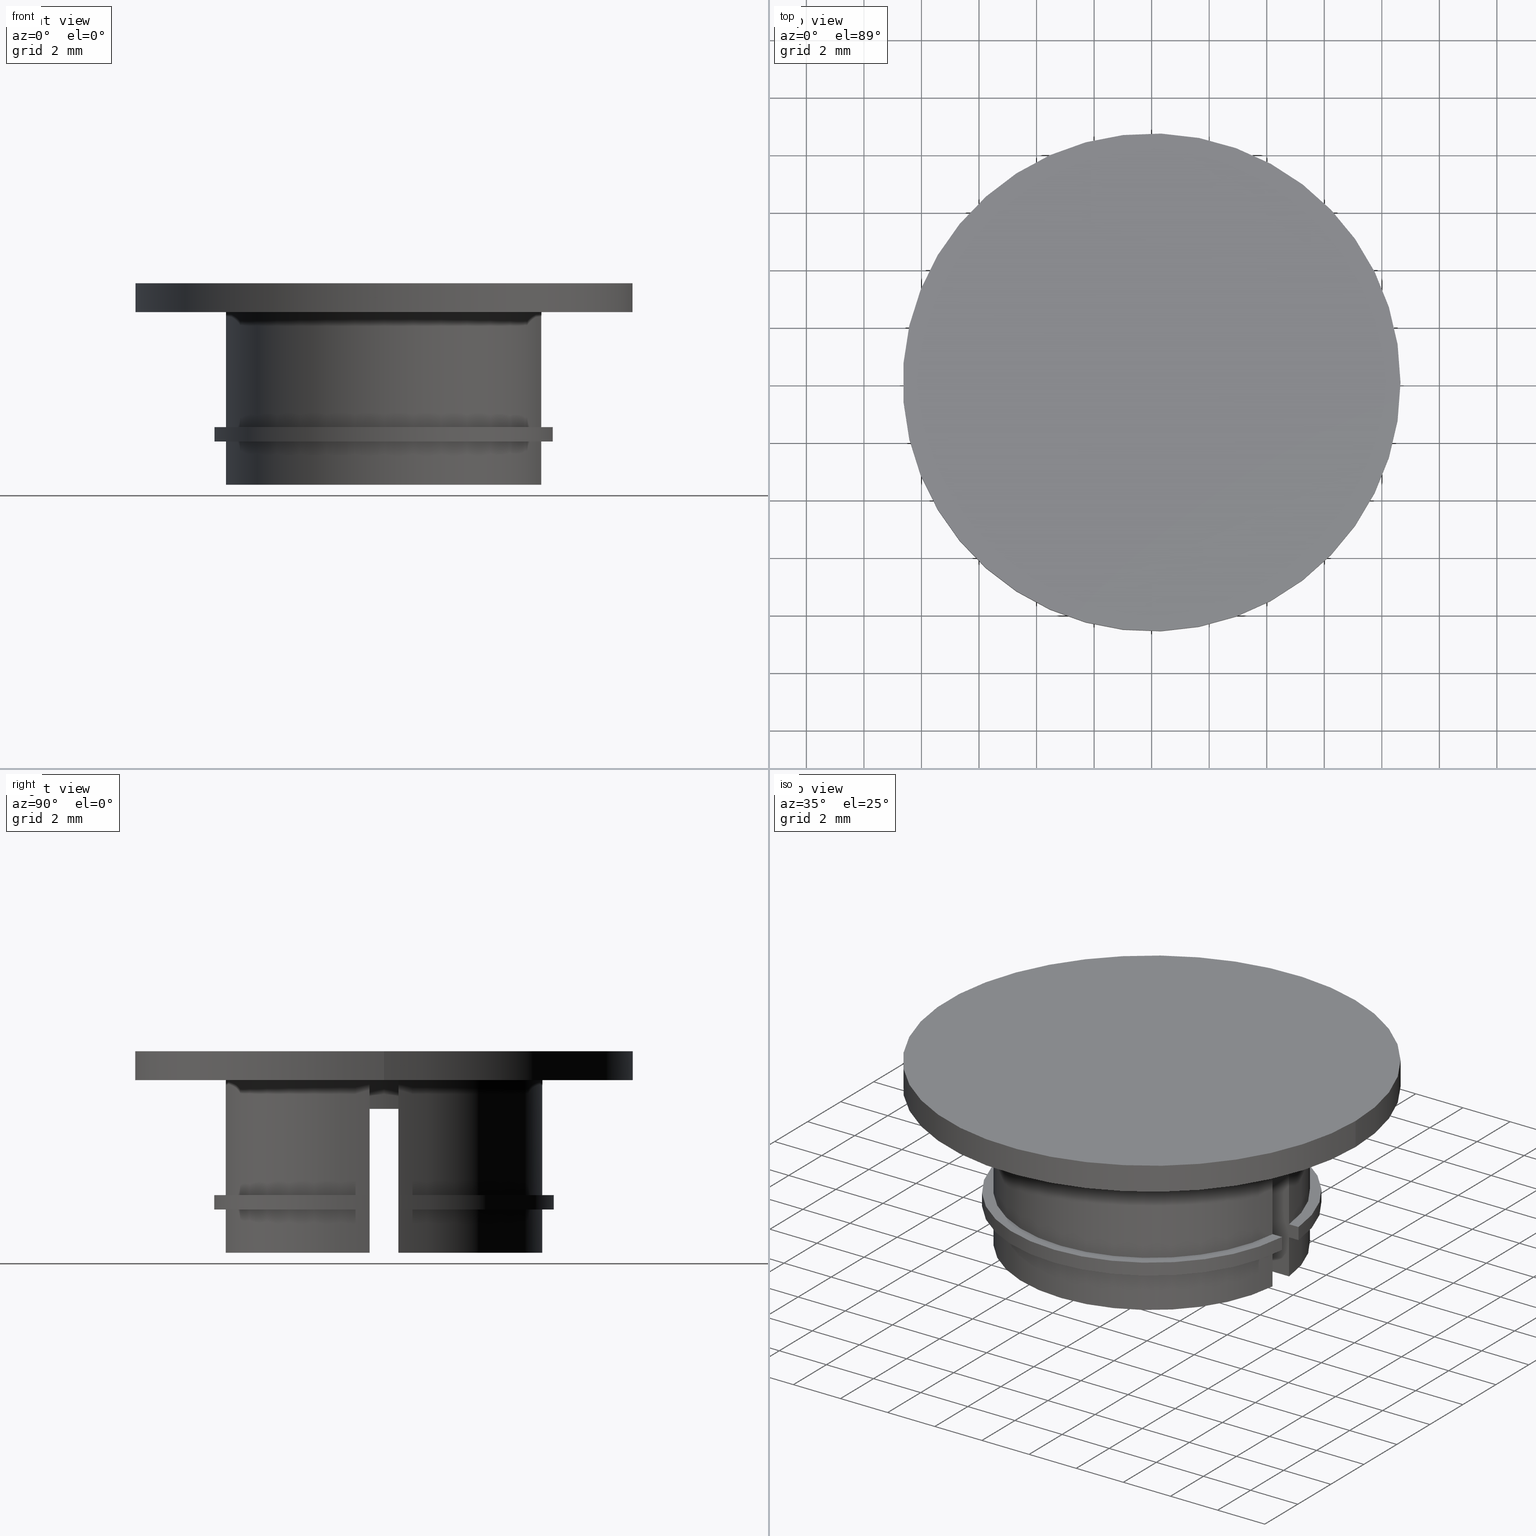
[diagram: canonical four-view strip — front | top / right | iso, engineering-drawing reading convention]
A machine part, canonical four-view strip (front | top / right | iso — engineering-drawing reading convention). The complete STEP part file that produces these views, byte-faithful:
ISO-10303-21;
HEADER;
FILE_DESCRIPTION( ( 'STEP AP203' ), '1' );
FILE_NAME( 'C:/Documents and Settings/JP/�f�X�N�g�b�v/�_�E�����[�h�pCAD�f�[�^/�A���J�[�p���l�W�L���b�v/M12/M12.step', '2022-07-28T02:36:51', ( ' ' ), ( ' ' ), 'XStep 1.0', ' ', ' ' );
FILE_SCHEMA( ( 'CONFIG_CONTROL_DESIGN' ) );
ENDSEC;
DATA;
#1 = DESIGN_CONTEXT( '', #27, 'design' );
#2 = APPLICATION_PROTOCOL_DEFINITION( 'INTERNATIONAL STANDARD', 'config_control_design', 1994, #27 );
#3 = PRODUCT_CATEGORY_RELATIONSHIP( 'NONE', 'NONE', #28, #29 );
#4 = DATE_AND_TIME( #30, #31 );
#5 = DATE_TIME_ROLE( 'creation_date' );
#6 = DATE_TIME_ROLE( 'classification_date' );
#7 = PERSON_AND_ORGANIZATION_ROLE( 'creator' );
#8 = PERSON_AND_ORGANIZATION_ROLE( 'design_supplier' );
#9 = PERSON_AND_ORGANIZATION_ROLE( 'classification_officer' );
#10 = PERSON_AND_ORGANIZATION_ROLE( 'design_owner' );
#11 = APPROVAL_PERSON_ORGANIZATION( #32, #33, #34 );
#12 = APPROVAL_DATE_TIME( #4, #33 );
#13 = CC_DESIGN_APPROVAL( #33, ( #35, #36, #37 ) );
#14 = CC_DESIGN_DATE_AND_TIME_ASSIGNMENT( #4, #5, ( #37 ) );
#15 = CC_DESIGN_DATE_AND_TIME_ASSIGNMENT( #4, #6, ( #35 ) );
#16 = CC_DESIGN_PERSON_AND_ORGANIZATION_ASSIGNMENT( #32, #10, ( #38 ) );
#17 = CC_DESIGN_PERSON_AND_ORGANIZATION_ASSIGNMENT( #32, #7, ( #37 ) );
#18 = CC_DESIGN_PERSON_AND_ORGANIZATION_ASSIGNMENT( #32, #7, ( #36 ) );
#19 = CC_DESIGN_PERSON_AND_ORGANIZATION_ASSIGNMENT( #32, #8, ( #36 ) );
#20 = CC_DESIGN_SECURITY_CLASSIFICATION( #35, ( #36 ) );
#21 = CC_DESIGN_PERSON_AND_ORGANIZATION_ASSIGNMENT( #32, #9, ( #35 ) );
#22 = SHAPE_DEFINITION_REPRESENTATION( #39, #40 );
#23 =  ( GEOMETRIC_REPRESENTATION_CONTEXT( 3 )GLOBAL_UNCERTAINTY_ASSIGNED_CONTEXT( ( #43 ) )GLOBAL_UNIT_ASSIGNED_CONTEXT( ( #45, #46, #47 ) )REPRESENTATION_CONTEXT( 'NONE', 'WORKSPACE' ) );
#27 = APPLICATION_CONTEXT( 'CONFIGURATION CONTROLLED 3D DESIGNS OF MECHANICAL PARTS AND ASSEMBLIES' );
#28 = PRODUCT_CATEGORY( 'part', 'NONE' );
#29 = PRODUCT_RELATED_PRODUCT_CATEGORY( 'detail', ' ', ( #38 ) );
#30 = CALENDAR_DATE( 2022, 28, 6 );
#31 = LOCAL_TIME( 11, 36, 51.0000000000000, #49 );
#32 = PERSON_AND_ORGANIZATION( #50, #51 );
#33 = APPROVAL( #52, 'SOLID MODEL' );
#34 = APPROVAL_ROLE( 'APPROVED' );
#35 = SECURITY_CLASSIFICATION( '', '', #53 );
#36 = PRODUCT_DEFINITION_FORMATION_WITH_SPECIFIED_SOURCE( ' ', 'NONE', #38, .NOT_KNOWN. );
#37 = PRODUCT_DEFINITION( 'NONE', 'NONE', #36, #1 );
#38 = PRODUCT( '1', '1', 'PART-1-DESC', ( #54 ) );
#39 = PRODUCT_DEFINITION_SHAPE( 'NONE', 'NONE', #37 );
#40 = ADVANCED_BREP_SHAPE_REPRESENTATION( '1', ( #55, #56 ), #23 );
#43 = UNCERTAINTY_MEASURE_WITH_UNIT( LENGTH_MEASURE( 0.00100000000000000 ), #45, '', '' );
#45 =  ( CONVERSION_BASED_UNIT( 'MILLIMETRE', #59 )LENGTH_UNIT(  )NAMED_UNIT( #62 ) );
#46 =  ( NAMED_UNIT( #64 )PLANE_ANGLE_UNIT(  )SI_UNIT( $, .RADIAN. ) );
#47 =  ( NAMED_UNIT( #64 )SOLID_ANGLE_UNIT(  )SI_UNIT( $, .STERADIAN. ) );
#49 = COORDINATED_UNIVERSAL_TIME_OFFSET( 9, 0, .AHEAD. );
#50 = PERSON( '', 'UNSPECIFIED', $, $, $, $ );
#51 = ORGANIZATION( 'UNSPECIFIED', 'UNSPECIFIED', 'UNSPECIFIED' );
#52 = APPROVAL_STATUS( 'approved' );
#53 = SECURITY_CLASSIFICATION_LEVEL( 'unclassified' );
#54 = MECHANICAL_CONTEXT( '', #27, 'mechanical' );
#55 = MANIFOLD_SOLID_BREP( '1', #70 );
#56 = AXIS2_PLACEMENT_3D( '', #71, #72, #73 );
#59 = LENGTH_MEASURE_WITH_UNIT( LENGTH_MEASURE( 1.00000000000000 ), #74 );
#62 = DIMENSIONAL_EXPONENTS( 1.00000000000000, 0.000000000000000, 0.000000000000000, 0.000000000000000, 0.000000000000000, 0.000000000000000, 0.000000000000000 );
#64 = DIMENSIONAL_EXPONENTS( 0.000000000000000, 0.000000000000000, 0.000000000000000, 0.000000000000000, 0.000000000000000, 0.000000000000000, 0.000000000000000 );
#70 = CLOSED_SHELL( '', ( #75, #76, #77, #78, #79, #80, #81, #82, #83, #84, #85, #86, #87, #88, #89, #90, #91, #92, #93, #94, #95, #96, #97, #98 ) );
#71 = CARTESIAN_POINT( '', ( 0.000000000000000, 0.000000000000000, 0.000000000000000 ) );
#72 = DIRECTION( '', ( 0.000000000000000, 0.000000000000000, 1.00000000000000 ) );
#73 = DIRECTION( '', ( 1.00000000000000, 0.000000000000000, 0.000000000000000 ) );
#74 =  ( NAMED_UNIT( #62 )LENGTH_UNIT(  )SI_UNIT( .MILLI., .METRE. ) );
#75 = ADVANCED_FACE( '', ( #100 ), #101, .F. );
#76 = ADVANCED_FACE( '', ( #102, #103 ), #104, .F. );
#77 = ADVANCED_FACE( '', ( #105 ), #106, .T. );
#78 = ADVANCED_FACE( '', ( #107 ), #108, .T. );
#79 = ADVANCED_FACE( '', ( #109 ), #110, .T. );
#80 = ADVANCED_FACE( '', ( #111 ), #112, .F. );
#81 = ADVANCED_FACE( '', ( #113 ), #114, .T. );
#82 = ADVANCED_FACE( '', ( #115 ), #116, .T. );
#83 = ADVANCED_FACE( '', ( #117 ), #118, .T. );
#84 = ADVANCED_FACE( '', ( #119, #120 ), #121, .T. );
#85 = ADVANCED_FACE( '', ( #122 ), #123, .F. );
#86 = ADVANCED_FACE( '', ( #124 ), #125, .F. );
#87 = ADVANCED_FACE( '', ( #126 ), #127, .F. );
#88 = ADVANCED_FACE( '', ( #128 ), #129, .T. );
#89 = ADVANCED_FACE( '', ( #130 ), #131, .F. );
#90 = ADVANCED_FACE( '', ( #132 ), #133, .T. );
#91 = ADVANCED_FACE( '', ( #134 ), #135, .F. );
#92 = ADVANCED_FACE( '', ( #136 ), #137, .T. );
#93 = ADVANCED_FACE( '', ( #138 ), #139, .T. );
#94 = ADVANCED_FACE( '', ( #140 ), #141, .F. );
#95 = ADVANCED_FACE( '', ( #142 ), #143, .F. );
#96 = ADVANCED_FACE( '', ( #144 ), #145, .T. );
#97 = ADVANCED_FACE( '', ( #146 ), #147, .T. );
#98 = ADVANCED_FACE( '', ( #148 ), #149, .F. );
#100 = FACE_OUTER_BOUND( '', #150, .T. );
#101 = CYLINDRICAL_SURFACE( '', #151, 4.50000000000000 );
#102 = FACE_BOUND( '', #152, .T. );
#103 = FACE_OUTER_BOUND( '', #153, .T. );
#104 = PLANE( '', #154 );
#105 = FACE_OUTER_BOUND( '', #155, .T. );
#106 = PLANE( '', #156 );
#107 = FACE_OUTER_BOUND( '', #157, .T. );
#108 = CYLINDRICAL_SURFACE( '', #158, 4.50000000000001 );
#109 = FACE_OUTER_BOUND( '', #159, .T. );
#110 = PLANE( '', #160 );
#111 = FACE_OUTER_BOUND( '', #161, .T. );
#112 = PLANE( '', #162 );
#113 = FACE_OUTER_BOUND( '', #163, .T. );
#114 = PLANE( '', #164 );
#115 = FACE_OUTER_BOUND( '', #165, .T. );
#116 = CYLINDRICAL_SURFACE( '', #166, 5.50000000000000 );
#117 = FACE_OUTER_BOUND( '', #167, .T. );
#118 = CYLINDRICAL_SURFACE( '', #168, 5.50000000000000 );
#119 = FACE_OUTER_BOUND( '', #169, .T. );
#120 = FACE_OUTER_BOUND( '', #170, .T. );
#121 = CYLINDRICAL_SURFACE( '', #171, 8.65000000000000 );
#122 = FACE_OUTER_BOUND( '', #172, .T. );
#123 = CYLINDRICAL_SURFACE( '', #173, 4.50000000000000 );
#124 = FACE_OUTER_BOUND( '', #174, .T. );
#125 = PLANE( '', #175 );
#126 = FACE_OUTER_BOUND( '', #176, .T. );
#127 = PLANE( '', #177 );
#128 = FACE_OUTER_BOUND( '', #178, .T. );
#129 = CYLINDRICAL_SURFACE( '', #179, 4.50000000000000 );
#130 = FACE_OUTER_BOUND( '', #180, .T. );
#131 = PLANE( '', #181 );
#132 = FACE_OUTER_BOUND( '', #182, .T. );
#133 = PLANE( '', #183 );
#134 = FACE_OUTER_BOUND( '', #184, .T. );
#135 = PLANE( '', #185 );
#136 = FACE_OUTER_BOUND( '', #186, .T. );
#137 = CYLINDRICAL_SURFACE( '', #187, 5.90000000000000 );
#138 = FACE_OUTER_BOUND( '', #188, .T. );
#139 = CYLINDRICAL_SURFACE( '', #189, 5.90000000000000 );
#140 = FACE_OUTER_BOUND( '', #190, .T. );
#141 = PLANE( '', #191 );
#142 = FACE_OUTER_BOUND( '', #192, .T. );
#143 = PLANE( '', #193 );
#144 = FACE_OUTER_BOUND( '', #194, .T. );
#145 = CYLINDRICAL_SURFACE( '', #195, 5.49999999999999 );
#146 = FACE_OUTER_BOUND( '', #196, .T. );
#147 = CYLINDRICAL_SURFACE( '', #197, 5.49999999999999 );
#148 = FACE_OUTER_BOUND( '', #198, .T. );
#149 = PLANE( '', #199 );
#150 = EDGE_LOOP( '', ( #200, #201, #202, #203 ) );
#151 = AXIS2_PLACEMENT_3D( '', #204, #205, #206 );
#152 = EDGE_LOOP( '', ( #207, #208, #209, #210, #211, #212, #213, #214 ) );
#153 = EDGE_LOOP( '', ( #215 ) );
#154 = AXIS2_PLACEMENT_3D( '', #216, #217, #218 );
#155 = EDGE_LOOP( '', ( #219, #220, #221, #222, #223, #224, #225, #226, #227 ) );
#156 = AXIS2_PLACEMENT_3D( '', #228, #229, #230 );
#157 = EDGE_LOOP( '', ( #231, #232, #233, #234 ) );
#158 = AXIS2_PLACEMENT_3D( '', #235, #236, #237 );
#159 = EDGE_LOOP( '', ( #238, #239, #240, #241, #242, #243, #244, #245, #246 ) );
#160 = AXIS2_PLACEMENT_3D( '', #247, #248, #249 );
#161 = EDGE_LOOP( '', ( #250, #251, #252, #253 ) );
#162 = AXIS2_PLACEMENT_3D( '', #254, #255, #256 );
#163 = EDGE_LOOP( '', ( #257, #258, #259, #260, #261, #262, #263, #264, #265 ) );
#164 = AXIS2_PLACEMENT_3D( '', #266, #267, #268 );
#165 = EDGE_LOOP( '', ( #269, #270, #271, #272 ) );
#166 = AXIS2_PLACEMENT_3D( '', #273, #274, #275 );
#167 = EDGE_LOOP( '', ( #276, #277, #278, #279 ) );
#168 = AXIS2_PLACEMENT_3D( '', #280, #281, #282 );
#169 = EDGE_LOOP( '', ( #283 ) );
#170 = EDGE_LOOP( '', ( #284 ) );
#171 = AXIS2_PLACEMENT_3D( '', #285, #286, #287 );
#172 = EDGE_LOOP( '', ( #288, #289, #290, #291 ) );
#173 = AXIS2_PLACEMENT_3D( '', #292, #293, #294 );
#174 = EDGE_LOOP( '', ( #295, #296, #297, #298 ) );
#175 = AXIS2_PLACEMENT_3D( '', #299, #300, #301 );
#176 = EDGE_LOOP( '', ( #302, #303, #304, #305 ) );
#177 = AXIS2_PLACEMENT_3D( '', #306, #307, #308 );
#178 = EDGE_LOOP( '', ( #309, #310, #311, #312 ) );
#179 = AXIS2_PLACEMENT_3D( '', #313, #314, #315 );
#180 = EDGE_LOOP( '', ( #316 ) );
#181 = AXIS2_PLACEMENT_3D( '', #317, #318, #319 );
#182 = EDGE_LOOP( '', ( #320, #321, #322, #323, #324, #325, #326, #327, #328 ) );
#183 = AXIS2_PLACEMENT_3D( '', #329, #330, #331 );
#184 = EDGE_LOOP( '', ( #332, #333, #334, #335 ) );
#185 = AXIS2_PLACEMENT_3D( '', #336, #337, #338 );
#186 = EDGE_LOOP( '', ( #339, #340, #341, #342 ) );
#187 = AXIS2_PLACEMENT_3D( '', #343, #344, #345 );
#188 = EDGE_LOOP( '', ( #346, #347, #348, #349 ) );
#189 = AXIS2_PLACEMENT_3D( '', #350, #351, #352 );
#190 = EDGE_LOOP( '', ( #353, #354, #355, #356 ) );
#191 = AXIS2_PLACEMENT_3D( '', #357, #358, #359 );
#192 = EDGE_LOOP( '', ( #360, #361, #362, #363 ) );
#193 = AXIS2_PLACEMENT_3D( '', #364, #365, #366 );
#194 = EDGE_LOOP( '', ( #367, #368, #369, #370 ) );
#195 = AXIS2_PLACEMENT_3D( '', #371, #372, #373 );
#196 = EDGE_LOOP( '', ( #374, #375, #376, #377 ) );
#197 = AXIS2_PLACEMENT_3D( '', #378, #379, #380 );
#198 = EDGE_LOOP( '', ( #381, #382, #383, #384 ) );
#199 = AXIS2_PLACEMENT_3D( '', #385, #386, #387 );
#200 = ORIENTED_EDGE( '', *, *, #388, .F. );
#201 = ORIENTED_EDGE( '', *, *, #389, .F. );
#202 = ORIENTED_EDGE( '', *, *, #390, .T. );
#203 = ORIENTED_EDGE( '', *, *, #391, .T. );
#204 = CARTESIAN_POINT( '', ( 0.000000000000000, 0.000000000000000, 6.00000000000000 ) );
#205 = DIRECTION( '', ( 6.12303176911189E-017, 0.000000000000000, -1.00000000000000 ) );
#206 = DIRECTION( '', ( 1.00000000000000, 0.000000000000000, 6.12303176911189E-017 ) );
#207 = ORIENTED_EDGE( '', *, *, #392, .T. );
#208 = ORIENTED_EDGE( '', *, *, #393, .T. );
#209 = ORIENTED_EDGE( '', *, *, #394, .T. );
#210 = ORIENTED_EDGE( '', *, *, #395, .T. );
#211 = ORIENTED_EDGE( '', *, *, #396, .T. );
#212 = ORIENTED_EDGE( '', *, *, #397, .T. );
#213 = ORIENTED_EDGE( '', *, *, #398, .T. );
#214 = ORIENTED_EDGE( '', *, *, #399, .T. );
#215 = ORIENTED_EDGE( '', *, *, #400, .F. );
#216 = CARTESIAN_POINT( '', ( -7.96632521552264E-032, 5.49999999999999, 6.00000000000000 ) );
#217 = DIRECTION( '', ( -6.12303176911189E-017, 0.000000000000000, 1.00000000000000 ) );
#218 = DIRECTION( '', ( 1.00000000000000, 0.000000000000000, 6.12303176911189E-017 ) );
#219 = ORIENTED_EDGE( '', *, *, #401, .T. );
#220 = ORIENTED_EDGE( '', *, *, #388, .T. );
#221 = ORIENTED_EDGE( '', *, *, #402, .T. );
#222 = ORIENTED_EDGE( '', *, *, #393, .F. );
#223 = ORIENTED_EDGE( '', *, *, #403, .T. );
#224 = ORIENTED_EDGE( '', *, *, #404, .T. );
#225 = ORIENTED_EDGE( '', *, *, #405, .F. );
#226 = ORIENTED_EDGE( '', *, *, #406, .T. );
#227 = ORIENTED_EDGE( '', *, *, #407, .T. );
#228 = CARTESIAN_POINT( '', ( -5.87877538267963, 0.500000000000002, -6.00000000017099 ) );
#229 = DIRECTION( '', ( 1.83253142170860E-016, -1.00000000000000, 1.12206481130175E-032 ) );
#230 = DIRECTION( '', ( -1.00000000000000, -1.83253142170860E-016, -6.12303176911189E-017 ) );
#231 = ORIENTED_EDGE( '', *, *, #408, .T. );
#232 = ORIENTED_EDGE( '', *, *, #409, .T. );
#233 = ORIENTED_EDGE( '', *, *, #394, .F. );
#234 = ORIENTED_EDGE( '', *, *, #402, .F. );
#235 = CARTESIAN_POINT( '', ( 7.34763812303896E-016, 0.000000000000000, -6.00000000017099 ) );
#236 = DIRECTION( '', ( 6.12303176911189E-017, 0.000000000000000, -1.00000000000000 ) );
#237 = DIRECTION( '', ( 1.83253142170860E-016, -1.00000000000000, 1.12206481130175E-032 ) );
#238 = ORIENTED_EDGE( '', *, *, #410, .T. );
#239 = ORIENTED_EDGE( '', *, *, #411, .T. );
#240 = ORIENTED_EDGE( '', *, *, #412, .T. );
#241 = ORIENTED_EDGE( '', *, *, #397, .F. );
#242 = ORIENTED_EDGE( '', *, *, #413, .T. );
#243 = ORIENTED_EDGE( '', *, *, #414, .T. );
#244 = ORIENTED_EDGE( '', *, *, #415, .F. );
#245 = ORIENTED_EDGE( '', *, *, #416, .T. );
#246 = ORIENTED_EDGE( '', *, *, #417, .T. );
#247 = CARTESIAN_POINT( '', ( 5.87877538267963, -0.499999999999996, -6.00000000017099 ) );
#248 = DIRECTION( '', ( -1.83253142170860E-016, 1.00000000000000, -1.12206481130175E-032 ) );
#249 = DIRECTION( '', ( 1.00000000000000, 1.83253142170860E-016, 6.12303176911189E-017 ) );
#250 = ORIENTED_EDGE( '', *, *, #418, .F. );
#251 = ORIENTED_EDGE( '', *, *, #419, .T. );
#252 = ORIENTED_EDGE( '', *, *, #414, .F. );
#253 = ORIENTED_EDGE( '', *, *, #420, .F. );
#254 = CARTESIAN_POINT( '', ( 2.44921270764476E-016, 5.90000000000000, 1.99999999999999 ) );
#255 = DIRECTION( '', ( 6.12303176911189E-017, 0.000000000000000, -1.00000000000000 ) );
#256 = DIRECTION( '', ( -1.00000000000000, 0.000000000000000, -6.12303176911189E-017 ) );
#257 = ORIENTED_EDGE( '', *, *, #421, .T. );
#258 = ORIENTED_EDGE( '', *, *, #422, .T. );
#259 = ORIENTED_EDGE( '', *, *, #423, .T. );
#260 = ORIENTED_EDGE( '', *, *, #424, .T. );
#261 = ORIENTED_EDGE( '', *, *, #418, .T. );
#262 = ORIENTED_EDGE( '', *, *, #425, .T. );
#263 = ORIENTED_EDGE( '', *, *, #395, .F. );
#264 = ORIENTED_EDGE( '', *, *, #409, .F. );
#265 = ORIENTED_EDGE( '', *, *, #426, .F. );
#266 = CARTESIAN_POINT( '', ( -4.47213595499959, -0.499999999999998, -6.00000000017099 ) );
#267 = DIRECTION( '', ( -1.83253142170860E-016, 1.00000000000000, -1.12206481130175E-032 ) );
#268 = DIRECTION( '', ( 1.00000000000000, 1.83253142170860E-016, 6.12303176911189E-017 ) );
#269 = ORIENTED_EDGE( '', *, *, #425, .F. );
#270 = ORIENTED_EDGE( '', *, *, #420, .T. );
#271 = ORIENTED_EDGE( '', *, *, #413, .F. );
#272 = ORIENTED_EDGE( '', *, *, #396, .F. );
#273 = CARTESIAN_POINT( '', ( 0.000000000000000, 0.000000000000000, 6.00000000000000 ) );
#274 = DIRECTION( '', ( 6.12303176911189E-017, 0.000000000000000, -1.00000000000000 ) );
#275 = DIRECTION( '', ( 1.00000000000000, 0.000000000000000, 6.12303176911189E-017 ) );
#276 = ORIENTED_EDGE( '', *, *, #403, .F. );
#277 = ORIENTED_EDGE( '', *, *, #392, .F. );
#278 = ORIENTED_EDGE( '', *, *, #427, .F. );
#279 = ORIENTED_EDGE( '', *, *, #428, .T. );
#280 = CARTESIAN_POINT( '', ( 0.000000000000000, 0.000000000000000, 6.00000000000000 ) );
#281 = DIRECTION( '', ( 6.12303176911189E-017, 0.000000000000000, -1.00000000000000 ) );
#282 = DIRECTION( '', ( 1.00000000000000, 0.000000000000000, 6.12303176911189E-017 ) );
#283 = ORIENTED_EDGE( '', *, *, #429, .F. );
#284 = ORIENTED_EDGE( '', *, *, #400, .T. );
#285 = CARTESIAN_POINT( '', ( 0.000000000000000, 0.000000000000000, 6.00000000000000 ) );
#286 = DIRECTION( '', ( 6.12303176911189E-017, 0.000000000000000, -1.00000000000000 ) );
#287 = DIRECTION( '', ( 1.00000000000000, 0.000000000000000, 6.12303176911189E-017 ) );
#288 = ORIENTED_EDGE( '', *, *, #426, .T. );
#289 = ORIENTED_EDGE( '', *, *, #430, .T. );
#290 = ORIENTED_EDGE( '', *, *, #411, .F. );
#291 = ORIENTED_EDGE( '', *, *, #431, .F. );
#292 = CARTESIAN_POINT( '', ( 0.000000000000000, 0.000000000000000, 6.00000000000000 ) );
#293 = DIRECTION( '', ( 6.12303176911189E-017, 0.000000000000000, -1.00000000000000 ) );
#294 = DIRECTION( '', ( 1.00000000000000, 0.000000000000000, 6.12303176911189E-017 ) );
#295 = ORIENTED_EDGE( '', *, *, #401, .F. );
#296 = ORIENTED_EDGE( '', *, *, #432, .F. );
#297 = ORIENTED_EDGE( '', *, *, #433, .F. );
#298 = ORIENTED_EDGE( '', *, *, #389, .T. );
#299 = CARTESIAN_POINT( '', ( 3.67381906146713E-016, 4.50000000000000, 1.73472347597681E-015 ) );
#300 = DIRECTION( '', ( -6.12303176911189E-017, 0.000000000000000, 1.00000000000000 ) );
#301 = DIRECTION( '', ( 1.00000000000000, 0.000000000000000, 6.12303176911189E-017 ) );
#302 = ORIENTED_EDGE( '', *, *, #391, .F. );
#303 = ORIENTED_EDGE( '', *, *, #434, .F. );
#304 = ORIENTED_EDGE( '', *, *, #430, .F. );
#305 = ORIENTED_EDGE( '', *, *, #408, .F. );
#306 = CARTESIAN_POINT( '', ( 6.12303176911184E-017, 0.000000000000000, 5.00000000000001 ) );
#307 = DIRECTION( '', ( -6.12303176911189E-017, 0.000000000000000, 1.00000000000000 ) );
#308 = DIRECTION( '', ( 1.00000000000000, 0.000000000000000, 6.12303176911189E-017 ) );
#309 = ORIENTED_EDGE( '', *, *, #434, .T. );
#310 = ORIENTED_EDGE( '', *, *, #435, .T. );
#311 = ORIENTED_EDGE( '', *, *, #398, .F. );
#312 = ORIENTED_EDGE( '', *, *, #412, .F. );
#313 = CARTESIAN_POINT( '', ( 7.34763812303896E-016, 0.000000000000000, -6.00000000017099 ) );
#314 = DIRECTION( '', ( 6.12303176911189E-017, 0.000000000000000, -1.00000000000000 ) );
#315 = DIRECTION( '', ( 1.83253142170860E-016, -1.00000000000000, 1.12206481130175E-032 ) );
#316 = ORIENTED_EDGE( '', *, *, #429, .T. );
#317 = CARTESIAN_POINT( '', ( -6.12303176911189E-017, 8.65000000000002, 7.00000000000000 ) );
#318 = DIRECTION( '', ( 6.12303176911189E-017, 0.000000000000000, -1.00000000000000 ) );
#319 = DIRECTION( '', ( -1.00000000000000, 0.000000000000000, -6.12303176911189E-017 ) );
#320 = ORIENTED_EDGE( '', *, *, #433, .T. );
#321 = ORIENTED_EDGE( '', *, *, #436, .T. );
#322 = ORIENTED_EDGE( '', *, *, #437, .T. );
#323 = ORIENTED_EDGE( '', *, *, #438, .T. );
#324 = ORIENTED_EDGE( '', *, *, #439, .T. );
#325 = ORIENTED_EDGE( '', *, *, #427, .T. );
#326 = ORIENTED_EDGE( '', *, *, #399, .F. );
#327 = ORIENTED_EDGE( '', *, *, #435, .F. );
#328 = ORIENTED_EDGE( '', *, *, #390, .F. );
#329 = CARTESIAN_POINT( '', ( 4.47213595499958, 0.500000000000004, -6.00000000017099 ) );
#330 = DIRECTION( '', ( 1.83253142170860E-016, -1.00000000000000, 1.12206481130175E-032 ) );
#331 = DIRECTION( '', ( -1.00000000000000, -1.83253142170860E-016, -6.12303176911189E-017 ) );
#332 = ORIENTED_EDGE( '', *, *, #404, .F. );
#333 = ORIENTED_EDGE( '', *, *, #428, .F. );
#334 = ORIENTED_EDGE( '', *, *, #439, .F. );
#335 = ORIENTED_EDGE( '', *, *, #440, .T. );
#336 = CARTESIAN_POINT( '', ( 2.44921270764476E-016, 5.90000000000000, 1.99999999999999 ) );
#337 = DIRECTION( '', ( 6.12303176911189E-017, 0.000000000000000, -1.00000000000000 ) );
#338 = DIRECTION( '', ( -1.00000000000000, 0.000000000000000, -6.12303176911189E-017 ) );
#339 = ORIENTED_EDGE( '', *, *, #424, .F. );
#340 = ORIENTED_EDGE( '', *, *, #441, .T. );
#341 = ORIENTED_EDGE( '', *, *, #415, .T. );
#342 = ORIENTED_EDGE( '', *, *, #419, .F. );
#343 = CARTESIAN_POINT( '', ( 0.000000000000000, 0.000000000000000, 6.00000000000000 ) );
#344 = DIRECTION( '', ( 6.12303176911189E-017, 0.000000000000000, -1.00000000000000 ) );
#345 = DIRECTION( '', ( 1.00000000000000, 0.000000000000000, 6.12303176911189E-017 ) );
#346 = ORIENTED_EDGE( '', *, *, #405, .T. );
#347 = ORIENTED_EDGE( '', *, *, #440, .F. );
#348 = ORIENTED_EDGE( '', *, *, #438, .F. );
#349 = ORIENTED_EDGE( '', *, *, #442, .T. );
#350 = CARTESIAN_POINT( '', ( 0.000000000000000, 0.000000000000000, 6.00000000000000 ) );
#351 = DIRECTION( '', ( 6.12303176911189E-017, 0.000000000000000, -1.00000000000000 ) );
#352 = DIRECTION( '', ( 1.00000000000000, 0.000000000000000, 6.12303176911189E-017 ) );
#353 = ORIENTED_EDGE( '', *, *, #423, .F. );
#354 = ORIENTED_EDGE( '', *, *, #443, .T. );
#355 = ORIENTED_EDGE( '', *, *, #416, .F. );
#356 = ORIENTED_EDGE( '', *, *, #441, .F. );
#357 = CARTESIAN_POINT( '', ( 2.75536429610035E-016, 5.49999999999999, 1.50000000000000 ) );
#358 = DIRECTION( '', ( -6.12303176911189E-017, 0.000000000000000, 1.00000000000000 ) );
#359 = DIRECTION( '', ( 1.00000000000000, 0.000000000000000, 6.12303176911189E-017 ) );
#360 = ORIENTED_EDGE( '', *, *, #406, .F. );
#361 = ORIENTED_EDGE( '', *, *, #442, .F. );
#362 = ORIENTED_EDGE( '', *, *, #437, .F. );
#363 = ORIENTED_EDGE( '', *, *, #444, .T. );
#364 = CARTESIAN_POINT( '', ( 2.75536429610035E-016, 5.49999999999999, 1.50000000000000 ) );
#365 = DIRECTION( '', ( -6.12303176911189E-017, 0.000000000000000, 1.00000000000000 ) );
#366 = DIRECTION( '', ( 1.00000000000000, 0.000000000000000, 6.12303176911189E-017 ) );
#367 = ORIENTED_EDGE( '', *, *, #422, .F. );
#368 = ORIENTED_EDGE( '', *, *, #445, .T. );
#369 = ORIENTED_EDGE( '', *, *, #417, .F. );
#370 = ORIENTED_EDGE( '', *, *, #443, .F. );
#371 = CARTESIAN_POINT( '', ( 0.000000000000000, 0.000000000000000, 6.00000000000000 ) );
#372 = DIRECTION( '', ( 6.12303176911189E-017, 0.000000000000000, -1.00000000000000 ) );
#373 = DIRECTION( '', ( 1.00000000000000, 0.000000000000000, 6.12303176911189E-017 ) );
#374 = ORIENTED_EDGE( '', *, *, #407, .F. );
#375 = ORIENTED_EDGE( '', *, *, #444, .F. );
#376 = ORIENTED_EDGE( '', *, *, #436, .F. );
#377 = ORIENTED_EDGE( '', *, *, #432, .T. );
#378 = CARTESIAN_POINT( '', ( 0.000000000000000, 0.000000000000000, 6.00000000000000 ) );
#379 = DIRECTION( '', ( 6.12303176911189E-017, 0.000000000000000, -1.00000000000000 ) );
#380 = DIRECTION( '', ( 1.00000000000000, 0.000000000000000, 6.12303176911189E-017 ) );
#381 = ORIENTED_EDGE( '', *, *, #421, .F. );
#382 = ORIENTED_EDGE( '', *, *, #431, .T. );
#383 = ORIENTED_EDGE( '', *, *, #410, .F. );
#384 = ORIENTED_EDGE( '', *, *, #445, .F. );
#385 = CARTESIAN_POINT( '', ( 3.67381906146713E-016, 4.50000000000000, 1.73472347597681E-015 ) );
#386 = DIRECTION( '', ( -6.12303176911189E-017, 0.000000000000000, 1.00000000000000 ) );
#387 = DIRECTION( '', ( 1.00000000000000, 0.000000000000000, 6.12303176911189E-017 ) );
#388 = EDGE_CURVE( '', #446, #447, #448, .T. );
#389 = EDGE_CURVE( '', #449, #446, #450, .T. );
#390 = EDGE_CURVE( '', #449, #451, #452, .T. );
#391 = EDGE_CURVE( '', #451, #447, #453, .T. );
#392 = EDGE_CURVE( '', #454, #455, #456, .T. );
#393 = EDGE_CURVE( '', #455, #457, #458, .T. );
#394 = EDGE_CURVE( '', #457, #459, #460, .T. );
#395 = EDGE_CURVE( '', #459, #461, #462, .T. );
#396 = EDGE_CURVE( '', #461, #463, #464, .T. );
#397 = EDGE_CURVE( '', #463, #465, #466, .T. );
#398 = EDGE_CURVE( '', #465, #467, #468, .T. );
#399 = EDGE_CURVE( '', #467, #454, #469, .T. );
#400 = EDGE_CURVE( '', #470, #470, #471, .T. );
#401 = EDGE_CURVE( '', #472, #446, #473, .T. );
#402 = EDGE_CURVE( '', #447, #457, #474, .T. );
#403 = EDGE_CURVE( '', #455, #475, #476, .F. );
#404 = EDGE_CURVE( '', #475, #477, #478, .T. );
#405 = EDGE_CURVE( '', #479, #477, #480, .T. );
#406 = EDGE_CURVE( '', #479, #481, #482, .T. );
#407 = EDGE_CURVE( '', #481, #472, #483, .F. );
#408 = EDGE_CURVE( '', #447, #484, #485, .T. );
#409 = EDGE_CURVE( '', #484, #459, #486, .T. );
#410 = EDGE_CURVE( '', #487, #488, #489, .T. );
#411 = EDGE_CURVE( '', #488, #490, #491, .T. );
#412 = EDGE_CURVE( '', #490, #465, #492, .T. );
#413 = EDGE_CURVE( '', #463, #493, #494, .F. );
#414 = EDGE_CURVE( '', #493, #495, #496, .T. );
#415 = EDGE_CURVE( '', #497, #495, #498, .T. );
#416 = EDGE_CURVE( '', #497, #499, #500, .T. );
#417 = EDGE_CURVE( '', #499, #487, #501, .F. );
#418 = EDGE_CURVE( '', #502, #503, #504, .T. );
#419 = EDGE_CURVE( '', #502, #495, #505, .T. );
#420 = EDGE_CURVE( '', #503, #493, #506, .T. );
#421 = EDGE_CURVE( '', #507, #508, #509, .T. );
#422 = EDGE_CURVE( '', #508, #510, #511, .T. );
#423 = EDGE_CURVE( '', #510, #512, #513, .T. );
#424 = EDGE_CURVE( '', #512, #502, #514, .T. );
#425 = EDGE_CURVE( '', #503, #461, #515, .T. );
#426 = EDGE_CURVE( '', #507, #484, #516, .T. );
#427 = EDGE_CURVE( '', #517, #454, #518, .T. );
#428 = EDGE_CURVE( '', #517, #475, #519, .T. );
#429 = EDGE_CURVE( '', #520, #520, #521, .T. );
#430 = EDGE_CURVE( '', #484, #490, #522, .T. );
#431 = EDGE_CURVE( '', #507, #488, #523, .T. );
#432 = EDGE_CURVE( '', #524, #472, #525, .T. );
#433 = EDGE_CURVE( '', #449, #524, #526, .T. );
#434 = EDGE_CURVE( '', #490, #451, #527, .T. );
#435 = EDGE_CURVE( '', #451, #467, #528, .T. );
#436 = EDGE_CURVE( '', #524, #529, #530, .T. );
#437 = EDGE_CURVE( '', #529, #531, #532, .T. );
#438 = EDGE_CURVE( '', #531, #533, #534, .T. );
#439 = EDGE_CURVE( '', #533, #517, #535, .T. );
#440 = EDGE_CURVE( '', #533, #477, #536, .T. );
#441 = EDGE_CURVE( '', #512, #497, #537, .T. );
#442 = EDGE_CURVE( '', #531, #479, #538, .T. );
#443 = EDGE_CURVE( '', #510, #499, #539, .T. );
#444 = EDGE_CURVE( '', #529, #481, #540, .T. );
#445 = EDGE_CURVE( '', #508, #487, #541, .T. );
#446 = VERTEX_POINT( '', #542 );
#447 = VERTEX_POINT( '', #543 );
#448 = LINE( '', #544, #545 );
#449 = VERTEX_POINT( '', #546 );
#450 = CIRCLE( '', #547, 4.50000000000000 );
#451 = VERTEX_POINT( '', #548 );
#452 = LINE( '', #549, #550 );
#453 = CIRCLE( '', #551, 4.50000000000001 );
#454 = VERTEX_POINT( '', #552 );
#455 = VERTEX_POINT( '', #553 );
#456 = CIRCLE( '', #554, 5.50000000000000 );
#457 = VERTEX_POINT( '', #555 );
#458 = LINE( '', #556, #557 );
#459 = VERTEX_POINT( '', #558 );
#460 = CIRCLE( '', #559, 4.50000000000001 );
#461 = VERTEX_POINT( '', #560 );
#462 = LINE( '', #561, #562 );
#463 = VERTEX_POINT( '', #563 );
#464 = CIRCLE( '', #564, 5.50000000000000 );
#465 = VERTEX_POINT( '', #565 );
#466 = LINE( '', #566, #567 );
#467 = VERTEX_POINT( '', #568 );
#468 = CIRCLE( '', #569, 4.50000000000000 );
#469 = LINE( '', #570, #571 );
#470 = VERTEX_POINT( '', #572 );
#471 = CIRCLE( '', #573, 8.65000000000000 );
#472 = VERTEX_POINT( '', #574 );
#473 = LINE( '', #575, #576 );
#474 = LINE( '', #577, #578 );
#475 = VERTEX_POINT( '', #579 );
#476 = LINE( '', #580, #581 );
#477 = VERTEX_POINT( '', #582 );
#478 = LINE( '', #583, #584 );
#479 = VERTEX_POINT( '', #585 );
#480 = LINE( '', #586, #587 );
#481 = VERTEX_POINT( '', #588 );
#482 = LINE( '', #589, #590 );
#483 = LINE( '', #591, #592 );
#484 = VERTEX_POINT( '', #593 );
#485 = CIRCLE( '', #594, 4.50000000000001 );
#486 = LINE( '', #595, #596 );
#487 = VERTEX_POINT( '', #597 );
#488 = VERTEX_POINT( '', #598 );
#489 = LINE( '', #599, #600 );
#490 = VERTEX_POINT( '', #601 );
#491 = LINE( '', #602, #603 );
#492 = LINE( '', #604, #605 );
#493 = VERTEX_POINT( '', #606 );
#494 = LINE( '', #607, #608 );
#495 = VERTEX_POINT( '', #609 );
#496 = LINE( '', #610, #611 );
#497 = VERTEX_POINT( '', #612 );
#498 = LINE( '', #613, #614 );
#499 = VERTEX_POINT( '', #615 );
#500 = LINE( '', #616, #617 );
#501 = LINE( '', #618, #619 );
#502 = VERTEX_POINT( '', #620 );
#503 = VERTEX_POINT( '', #621 );
#504 = LINE( '', #622, #623 );
#505 = CIRCLE( '', #624, 5.90000000000000 );
#506 = CIRCLE( '', #625, 5.49999999999999 );
#507 = VERTEX_POINT( '', #626 );
#508 = VERTEX_POINT( '', #627 );
#509 = LINE( '', #628, #629 );
#510 = VERTEX_POINT( '', #630 );
#511 = LINE( '', #631, #632 );
#512 = VERTEX_POINT( '', #633 );
#513 = LINE( '', #634, #635 );
#514 = LINE( '', #636, #637 );
#515 = LINE( '', #638, #639 );
#516 = LINE( '', #640, #641 );
#517 = VERTEX_POINT( '', #642 );
#518 = LINE( '', #643, #644 );
#519 = CIRCLE( '', #645, 5.49999999999999 );
#520 = VERTEX_POINT( '', #646 );
#521 = CIRCLE( '', #647, 8.65000000000000 );
#522 = CIRCLE( '', #648, 4.50000000000001 );
#523 = CIRCLE( '', #649, 4.50000000000000 );
#524 = VERTEX_POINT( '', #650 );
#525 = CIRCLE( '', #651, 5.49999999999999 );
#526 = LINE( '', #652, #653 );
#527 = CIRCLE( '', #654, 4.50000000000001 );
#528 = LINE( '', #655, #656 );
#529 = VERTEX_POINT( '', #657 );
#530 = LINE( '', #658, #659 );
#531 = VERTEX_POINT( '', #660 );
#532 = LINE( '', #661, #662 );
#533 = VERTEX_POINT( '', #663 );
#534 = LINE( '', #664, #665 );
#535 = LINE( '', #666, #667 );
#536 = CIRCLE( '', #668, 5.90000000000000 );
#537 = CIRCLE( '', #669, 5.90000000000000 );
#538 = CIRCLE( '', #670, 5.90000000000000 );
#539 = CIRCLE( '', #671, 5.50000000000000 );
#540 = CIRCLE( '', #672, 5.50000000000000 );
#541 = CIRCLE( '', #673, 5.49999999999999 );
#542 = CARTESIAN_POINT( '', ( -4.47213595499959, 0.500000000000002, 1.73472347597681E-015 ) );
#543 = CARTESIAN_POINT( '', ( -4.47213595499959, 0.500000000000002, 5.00000000000000 ) );
#544 = CARTESIAN_POINT( '', ( -4.47213595499959, 0.500000000000002, -6.00000000017099 ) );
#545 = VECTOR( '', #674, 1000.00000000000 );
#546 = CARTESIAN_POINT( '', ( 4.47213595499958, 0.500000000000004, 1.73472347597681E-015 ) );
#547 = AXIS2_PLACEMENT_3D( '', #675, #676, #677 );
#548 = CARTESIAN_POINT( '', ( 4.47213595499958, 0.500000000000004, 5.00000000000000 ) );
#549 = CARTESIAN_POINT( '', ( 4.47213595499958, 0.500000000000004, -6.00000000017099 ) );
#550 = VECTOR( '', #678, 1000.00000000000 );
#551 = AXIS2_PLACEMENT_3D( '', #679, #680, #681 );
#552 = CARTESIAN_POINT( '', ( 5.47722557505166, 0.500000000000004, 6.00000000000000 ) );
#553 = CARTESIAN_POINT( '', ( -5.47722557505166, 0.500000000000002, 6.00000000000000 ) );
#554 = AXIS2_PLACEMENT_3D( '', #682, #683, #684 );
#555 = CARTESIAN_POINT( '', ( -4.47213595499959, 0.500000000000002, 6.00000000000000 ) );
#556 = CARTESIAN_POINT( '', ( -5.87877538267963, 0.500000000000002, 6.00000000000000 ) );
#557 = VECTOR( '', #685, 1000.00000000000 );
#558 = CARTESIAN_POINT( '', ( -4.47213595499959, -0.499999999999996, 6.00000000000000 ) );
#559 = AXIS2_PLACEMENT_3D( '', #686, #687, #688 );
#560 = CARTESIAN_POINT( '', ( -5.47722557505166, -0.499999999999998, 6.00000000000000 ) );
#561 = CARTESIAN_POINT( '', ( -4.47213595499959, -0.499999999999998, 6.00000000000000 ) );
#562 = VECTOR( '', #689, 1000.00000000000 );
#563 = CARTESIAN_POINT( '', ( 5.47722557505166, -0.499999999999996, 6.00000000000000 ) );
#564 = AXIS2_PLACEMENT_3D( '', #690, #691, #692 );
#565 = CARTESIAN_POINT( '', ( 4.47213595499958, -0.499999999999996, 6.00000000000000 ) );
#566 = CARTESIAN_POINT( '', ( 5.87877538267963, -0.499999999999996, 6.00000000000000 ) );
#567 = VECTOR( '', #693, 1000.00000000000 );
#568 = CARTESIAN_POINT( '', ( 4.47213595499958, 0.500000000000004, 6.00000000000000 ) );
#569 = AXIS2_PLACEMENT_3D( '', #694, #695, #696 );
#570 = CARTESIAN_POINT( '', ( 4.47213595499958, 0.500000000000004, 6.00000000000000 ) );
#571 = VECTOR( '', #697, 1000.00000000000 );
#572 = CARTESIAN_POINT( '', ( 8.65000000000000, 0.000000000000000, 6.00000000000000 ) );
#573 = AXIS2_PLACEMENT_3D( '', #698, #699, #700 );
#574 = CARTESIAN_POINT( '', ( -5.47722557505166, 0.500000000000002, 0.000000000000000 ) );
#575 = CARTESIAN_POINT( '', ( 1.10039447483015E-015, 0.500000000000003, 1.73472347597681E-015 ) );
#576 = VECTOR( '', #701, 1000.00000000000 );
#577 = CARTESIAN_POINT( '', ( -4.47213595499959, 0.500000000000002, -6.00000000017099 ) );
#578 = VECTOR( '', #702, 1000.00000000000 );
#579 = CARTESIAN_POINT( '', ( -5.47722557505166, 0.500000000000002, 2.00000000000000 ) );
#580 = CARTESIAN_POINT( '', ( -5.47722557505166, 0.500000000000002, 6.00000000000000 ) );
#581 = VECTOR( '', #703, 1000.00000000000 );
#582 = CARTESIAN_POINT( '', ( -5.87877538267963, 0.500000000000002, 1.99999999999999 ) );
#583 = CARTESIAN_POINT( '', ( 1.23448823848712E-015, 0.500000000000003, 1.99999999999999 ) );
#584 = VECTOR( '', #704, 1000.00000000000 );
#585 = CARTESIAN_POINT( '', ( -5.87877538267963, 0.500000000000002, 1.50000000000000 ) );
#586 = CARTESIAN_POINT( '', ( -5.87877538267963, 0.500000000000002, -6.00000000017099 ) );
#587 = VECTOR( '', #705, 1000.00000000000 );
#588 = CARTESIAN_POINT( '', ( -5.47722557505166, 0.500000000000002, 1.50000000000000 ) );
#589 = CARTESIAN_POINT( '', ( 1.19180214046433E-015, 0.500000000000003, 1.50000000000000 ) );
#590 = VECTOR( '', #706, 1000.00000000000 );
#591 = CARTESIAN_POINT( '', ( -5.47722557505166, 0.500000000000002, 6.00000000000000 ) );
#592 = VECTOR( '', #707, 1000.00000000000 );
#593 = CARTESIAN_POINT( '', ( -4.47213595499959, -0.499999999999996, 5.00000000000001 ) );
#594 = AXIS2_PLACEMENT_3D( '', #708, #709, #710 );
#595 = CARTESIAN_POINT( '', ( -4.47213595499959, -0.499999999999996, -6.00000000017099 ) );
#596 = VECTOR( '', #711, 1000.00000000000 );
#597 = CARTESIAN_POINT( '', ( 5.47722557505166, -0.499999999999996, 0.000000000000000 ) );
#598 = CARTESIAN_POINT( '', ( 4.47213595499958, -0.499999999999996, 1.73472347597681E-015 ) );
#599 = CARTESIAN_POINT( '', ( 1.28364761700101E-015, -0.499999999999997, 1.73472347597681E-015 ) );
#600 = VECTOR( '', #712, 1000.00000000000 );
#601 = CARTESIAN_POINT( '', ( 4.47213595499958, -0.499999999999996, 5.00000000000000 ) );
#602 = CARTESIAN_POINT( '', ( 4.47213595499958, -0.499999999999996, -6.00000000017099 ) );
#603 = VECTOR( '', #713, 1000.00000000000 );
#604 = CARTESIAN_POINT( '', ( 4.47213595499958, -0.499999999999996, -6.00000000017099 ) );
#605 = VECTOR( '', #714, 1000.00000000000 );
#606 = CARTESIAN_POINT( '', ( 5.47722557505166, -0.499999999999996, 2.00000000000000 ) );
#607 = CARTESIAN_POINT( '', ( 5.47722557505166, -0.499999999999996, 6.00000000000000 ) );
#608 = VECTOR( '', #715, 1000.00000000000 );
#609 = CARTESIAN_POINT( '', ( 5.87877538267963, -0.499999999999995, 1.99999999999999 ) );
#610 = CARTESIAN_POINT( '', ( 1.41774138065798E-015, -0.499999999999997, 1.99999999999999 ) );
#611 = VECTOR( '', #716, 1000.00000000000 );
#612 = CARTESIAN_POINT( '', ( 5.87877538267963, -0.499999999999995, 1.50000000000000 ) );
#613 = CARTESIAN_POINT( '', ( 5.87877538267963, -0.499999999999995, -6.00000000017099 ) );
#614 = VECTOR( '', #717, 1000.00000000000 );
#615 = CARTESIAN_POINT( '', ( 5.47722557505166, -0.499999999999996, 1.50000000000000 ) );
#616 = CARTESIAN_POINT( '', ( 1.37505528263519E-015, -0.499999999999997, 1.50000000000000 ) );
#617 = VECTOR( '', #718, 1000.00000000000 );
#618 = CARTESIAN_POINT( '', ( 5.47722557505166, -0.499999999999996, 6.00000000000000 ) );
#619 = VECTOR( '', #719, 1000.00000000000 );
#620 = CARTESIAN_POINT( '', ( -5.87877538267963, -0.499999999999998, 1.99999999999999 ) );
#621 = CARTESIAN_POINT( '', ( -5.47722557505166, -0.499999999999998, 2.00000000000000 ) );
#622 = CARTESIAN_POINT( '', ( 1.41774138065798E-015, -0.499999999999997, 1.99999999999999 ) );
#623 = VECTOR( '', #720, 1000.00000000000 );
#624 = AXIS2_PLACEMENT_3D( '', #721, #722, #723 );
#625 = AXIS2_PLACEMENT_3D( '', #724, #725, #726 );
#626 = CARTESIAN_POINT( '', ( -4.47213595499959, -0.499999999999996, 1.73472347597681E-015 ) );
#627 = CARTESIAN_POINT( '', ( -5.47722557505166, -0.499999999999998, 0.000000000000000 ) );
#628 = CARTESIAN_POINT( '', ( 1.28364761700101E-015, -0.499999999999997, 1.73472347597681E-015 ) );
#629 = VECTOR( '', #727, 1000.00000000000 );
#630 = CARTESIAN_POINT( '', ( -5.47722557505166, -0.499999999999998, 1.50000000000000 ) );
#631 = CARTESIAN_POINT( '', ( -5.47722557505166, -0.499999999999998, 6.00000000000000 ) );
#632 = VECTOR( '', #728, 1000.00000000000 );
#633 = CARTESIAN_POINT( '', ( -5.87877538267963, -0.499999999999998, 1.50000000000000 ) );
#634 = CARTESIAN_POINT( '', ( 1.37505528263519E-015, -0.499999999999997, 1.50000000000000 ) );
#635 = VECTOR( '', #729, 1000.00000000000 );
#636 = CARTESIAN_POINT( '', ( -5.87877538267963, -0.499999999999998, -6.00000000017099 ) );
#637 = VECTOR( '', #730, 1000.00000000000 );
#638 = CARTESIAN_POINT( '', ( -5.47722557505166, -0.499999999999998, 6.00000000000000 ) );
#639 = VECTOR( '', #731, 1000.00000000000 );
#640 = CARTESIAN_POINT( '', ( -4.47213595499959, -0.499999999999996, -6.00000000017099 ) );
#641 = VECTOR( '', #732, 1000.00000000000 );
#642 = CARTESIAN_POINT( '', ( 5.47722557505166, 0.500000000000004, 2.00000000000000 ) );
#643 = CARTESIAN_POINT( '', ( 5.47722557505166, 0.500000000000004, 6.00000000000000 ) );
#644 = VECTOR( '', #733, 1000.00000000000 );
#645 = AXIS2_PLACEMENT_3D( '', #734, #735, #736 );
#646 = CARTESIAN_POINT( '', ( 8.65000000000000, 0.000000000000000, 7.00000000000000 ) );
#647 = AXIS2_PLACEMENT_3D( '', #737, #738, #739 );
#648 = AXIS2_PLACEMENT_3D( '', #740, #741, #742 );
#649 = AXIS2_PLACEMENT_3D( '', #743, #744, #745 );
#650 = CARTESIAN_POINT( '', ( 5.47722557505166, 0.500000000000004, 0.000000000000000 ) );
#651 = AXIS2_PLACEMENT_3D( '', #746, #747, #748 );
#652 = CARTESIAN_POINT( '', ( 1.10039447483015E-015, 0.500000000000003, 1.73472347597681E-015 ) );
#653 = VECTOR( '', #749, 1000.00000000000 );
#654 = AXIS2_PLACEMENT_3D( '', #750, #751, #752 );
#655 = CARTESIAN_POINT( '', ( 4.47213595499958, 0.500000000000004, -6.00000000017099 ) );
#656 = VECTOR( '', #753, 1000.00000000000 );
#657 = CARTESIAN_POINT( '', ( 5.47722557505166, 0.500000000000004, 1.50000000000000 ) );
#658 = CARTESIAN_POINT( '', ( 5.47722557505166, 0.500000000000004, 6.00000000000000 ) );
#659 = VECTOR( '', #754, 1000.00000000000 );
#660 = CARTESIAN_POINT( '', ( 5.87877538267963, 0.500000000000004, 1.50000000000000 ) );
#661 = CARTESIAN_POINT( '', ( 1.19180214046433E-015, 0.500000000000003, 1.50000000000000 ) );
#662 = VECTOR( '', #755, 1000.00000000000 );
#663 = CARTESIAN_POINT( '', ( 5.87877538267963, 0.500000000000004, 1.99999999999999 ) );
#664 = CARTESIAN_POINT( '', ( 5.87877538267963, 0.500000000000004, -6.00000000017099 ) );
#665 = VECTOR( '', #756, 1000.00000000000 );
#666 = CARTESIAN_POINT( '', ( 1.23448823848712E-015, 0.500000000000003, 1.99999999999999 ) );
#667 = VECTOR( '', #757, 1000.00000000000 );
#668 = AXIS2_PLACEMENT_3D( '', #758, #759, #760 );
#669 = AXIS2_PLACEMENT_3D( '', #761, #762, #763 );
#670 = AXIS2_PLACEMENT_3D( '', #764, #765, #766 );
#671 = AXIS2_PLACEMENT_3D( '', #767, #768, #769 );
#672 = AXIS2_PLACEMENT_3D( '', #770, #771, #772 );
#673 = AXIS2_PLACEMENT_3D( '', #773, #774, #775 );
#674 = DIRECTION( '', ( -6.12303176911189E-017, 0.000000000000000, 1.00000000000000 ) );
#675 = CARTESIAN_POINT( '', ( 3.67381906146713E-016, 0.000000000000000, 3.46944695195361E-015 ) );
#676 = DIRECTION( '', ( -6.12303176911189E-017, 0.000000000000000, 1.00000000000000 ) );
#677 = DIRECTION( '', ( 1.00000000000000, 0.000000000000000, 6.12303176911189E-017 ) );
#678 = DIRECTION( '', ( -6.12303176911189E-017, 0.000000000000000, 1.00000000000000 ) );
#679 = CARTESIAN_POINT( '', ( 6.12303176911189E-017, 0.000000000000000, 5.00000000000000 ) );
#680 = DIRECTION( '', ( -6.12303176911189E-017, 0.000000000000000, 1.00000000000000 ) );
#681 = DIRECTION( '', ( 1.00000000000000, 0.000000000000000, 6.12303176911189E-017 ) );
#682 = CARTESIAN_POINT( '', ( -1.59326504310453E-031, 0.000000000000000, 6.00000000000000 ) );
#683 = DIRECTION( '', ( -6.12303176911189E-017, 0.000000000000000, 1.00000000000000 ) );
#684 = DIRECTION( '', ( 1.00000000000000, 0.000000000000000, 6.12303176911189E-017 ) );
#685 = DIRECTION( '', ( 1.00000000000000, 1.83253142170860E-016, 6.12303176911189E-017 ) );
#686 = CARTESIAN_POINT( '', ( -1.06217669540302E-031, 0.000000000000000, 6.00000000000000 ) );
#687 = DIRECTION( '', ( -6.12303176911189E-017, 6.75780509415901E-050, 1.00000000000000 ) );
#688 = DIRECTION( '', ( 1.00000000000000, -9.49391071545180E-018, 6.12303176911189E-017 ) );
#689 = DIRECTION( '', ( -1.00000000000000, -1.83253142170860E-016, -6.12303176911189E-017 ) );
#690 = CARTESIAN_POINT( '', ( -1.59326504310453E-031, 0.000000000000000, 6.00000000000000 ) );
#691 = DIRECTION( '', ( -6.12303176911189E-017, 0.000000000000000, 1.00000000000000 ) );
#692 = DIRECTION( '', ( 1.00000000000000, 0.000000000000000, 6.12303176911189E-017 ) );
#693 = DIRECTION( '', ( -1.00000000000000, -1.83253142170860E-016, -6.12303176911189E-017 ) );
#694 = CARTESIAN_POINT( '', ( -1.06217669540302E-031, 0.000000000000000, 6.00000000000000 ) );
#695 = DIRECTION( '', ( -6.12303176911189E-017, 6.75780509415903E-050, 1.00000000000000 ) );
#696 = DIRECTION( '', ( 1.00000000000000, -9.49391071545217E-018, 6.12303176911189E-017 ) );
#697 = DIRECTION( '', ( 1.00000000000000, 1.83253142170860E-016, 6.12303176911189E-017 ) );
#698 = CARTESIAN_POINT( '', ( 0.000000000000000, 0.000000000000000, 6.00000000000000 ) );
#699 = DIRECTION( '', ( -6.12303176911189E-017, 0.000000000000000, 1.00000000000000 ) );
#700 = DIRECTION( '', ( 1.00000000000000, 0.000000000000000, 6.12303176911189E-017 ) );
#701 = DIRECTION( '', ( 1.00000000000000, 1.83253142170860E-016, 6.12303176911189E-017 ) );
#702 = DIRECTION( '', ( -6.12303176911189E-017, 0.000000000000000, 1.00000000000000 ) );
#703 = DIRECTION( '', ( -6.12303176911189E-017, 0.000000000000000, 1.00000000000000 ) );
#704 = DIRECTION( '', ( -1.00000000000000, -1.83253142170860E-016, -6.12303176911189E-017 ) );
#705 = DIRECTION( '', ( -6.12303176911189E-017, 0.000000000000000, 1.00000000000000 ) );
#706 = DIRECTION( '', ( 1.00000000000000, 1.83253142170860E-016, 6.12303176911189E-017 ) );
#707 = DIRECTION( '', ( -6.12303176911189E-017, 0.000000000000000, 1.00000000000000 ) );
#708 = CARTESIAN_POINT( '', ( 6.12303176911189E-017, 0.000000000000000, 5.00000000000000 ) );
#709 = DIRECTION( '', ( -6.12303176911189E-017, 0.000000000000000, 1.00000000000000 ) );
#710 = DIRECTION( '', ( 1.00000000000000, 0.000000000000000, 6.12303176911189E-017 ) );
#711 = DIRECTION( '', ( -6.12303176911189E-017, 0.000000000000000, 1.00000000000000 ) );
#712 = DIRECTION( '', ( -1.00000000000000, -1.83253142170860E-016, -6.12303176911189E-017 ) );
#713 = DIRECTION( '', ( -6.12303176911189E-017, 0.000000000000000, 1.00000000000000 ) );
#714 = DIRECTION( '', ( -6.12303176911189E-017, 0.000000000000000, 1.00000000000000 ) );
#715 = DIRECTION( '', ( -6.12303176911189E-017, 0.000000000000000, 1.00000000000000 ) );
#716 = DIRECTION( '', ( 1.00000000000000, 1.83253142170860E-016, 6.12303176911189E-017 ) );
#717 = DIRECTION( '', ( -6.12303176911189E-017, 0.000000000000000, 1.00000000000000 ) );
#718 = DIRECTION( '', ( -1.00000000000000, -1.83253142170860E-016, -6.12303176911189E-017 ) );
#719 = DIRECTION( '', ( -6.12303176911189E-017, 0.000000000000000, 1.00000000000000 ) );
#720 = DIRECTION( '', ( 1.00000000000000, 1.83253142170860E-016, 6.12303176911189E-017 ) );
#721 = CARTESIAN_POINT( '', ( 2.44921270764476E-016, 0.000000000000000, 1.99999999999999 ) );
#722 = DIRECTION( '', ( -6.12303176911189E-017, 0.000000000000000, 1.00000000000000 ) );
#723 = DIRECTION( '', ( 1.00000000000000, 0.000000000000000, 6.12303176911189E-017 ) );
#724 = CARTESIAN_POINT( '', ( 2.44921270764475E-016, 0.000000000000000, 2.00000000000000 ) );
#725 = DIRECTION( '', ( -6.12303176911189E-017, 0.000000000000000, 1.00000000000000 ) );
#726 = DIRECTION( '', ( 1.00000000000000, 0.000000000000000, 6.12303176911189E-017 ) );
#727 = DIRECTION( '', ( -1.00000000000000, -1.83253142170860E-016, -6.12303176911189E-017 ) );
#728 = DIRECTION( '', ( -6.12303176911189E-017, 0.000000000000000, 1.00000000000000 ) );
#729 = DIRECTION( '', ( -1.00000000000000, -1.83253142170860E-016, -6.12303176911189E-017 ) );
#730 = DIRECTION( '', ( -6.12303176911189E-017, 0.000000000000000, 1.00000000000000 ) );
#731 = DIRECTION( '', ( -6.12303176911189E-017, 0.000000000000000, 1.00000000000000 ) );
#732 = DIRECTION( '', ( -6.12303176911189E-017, 0.000000000000000, 1.00000000000000 ) );
#733 = DIRECTION( '', ( -6.12303176911189E-017, 0.000000000000000, 1.00000000000000 ) );
#734 = CARTESIAN_POINT( '', ( 2.44921270764475E-016, 0.000000000000000, 2.00000000000000 ) );
#735 = DIRECTION( '', ( -6.12303176911189E-017, 0.000000000000000, 1.00000000000000 ) );
#736 = DIRECTION( '', ( 1.00000000000000, 0.000000000000000, 6.12303176911189E-017 ) );
#737 = CARTESIAN_POINT( '', ( -6.12303176911190E-017, 0.000000000000000, 7.00000000000000 ) );
#738 = DIRECTION( '', ( -6.12303176911189E-017, 0.000000000000000, 1.00000000000000 ) );
#739 = DIRECTION( '', ( 1.00000000000000, 0.000000000000000, 6.12303176911189E-017 ) );
#740 = CARTESIAN_POINT( '', ( 6.12303176911189E-017, 0.000000000000000, 5.00000000000000 ) );
#741 = DIRECTION( '', ( -6.12303176911189E-017, 0.000000000000000, 1.00000000000000 ) );
#742 = DIRECTION( '', ( 1.00000000000000, 0.000000000000000, 6.12303176911189E-017 ) );
#743 = CARTESIAN_POINT( '', ( 3.67381906146713E-016, 0.000000000000000, 3.46944695195361E-015 ) );
#744 = DIRECTION( '', ( -6.12303176911189E-017, 0.000000000000000, 1.00000000000000 ) );
#745 = DIRECTION( '', ( 1.00000000000000, 0.000000000000000, 6.12303176911189E-017 ) );
#746 = CARTESIAN_POINT( '', ( 3.67381906146713E-016, 0.000000000000000, 0.000000000000000 ) );
#747 = DIRECTION( '', ( -6.12303176911189E-017, 0.000000000000000, 1.00000000000000 ) );
#748 = DIRECTION( '', ( 1.00000000000000, 0.000000000000000, 6.12303176911189E-017 ) );
#749 = DIRECTION( '', ( 1.00000000000000, 1.83253142170860E-016, 6.12303176911189E-017 ) );
#750 = CARTESIAN_POINT( '', ( 6.12303176911189E-017, 0.000000000000000, 5.00000000000000 ) );
#751 = DIRECTION( '', ( -6.12303176911189E-017, 0.000000000000000, 1.00000000000000 ) );
#752 = DIRECTION( '', ( 1.00000000000000, 0.000000000000000, 6.12303176911189E-017 ) );
#753 = DIRECTION( '', ( -6.12303176911189E-017, 0.000000000000000, 1.00000000000000 ) );
#754 = DIRECTION( '', ( -6.12303176911189E-017, 0.000000000000000, 1.00000000000000 ) );
#755 = DIRECTION( '', ( 1.00000000000000, 1.83253142170860E-016, 6.12303176911189E-017 ) );
#756 = DIRECTION( '', ( -6.12303176911189E-017, 0.000000000000000, 1.00000000000000 ) );
#757 = DIRECTION( '', ( -1.00000000000000, -1.83253142170860E-016, -6.12303176911189E-017 ) );
#758 = CARTESIAN_POINT( '', ( 2.44921270764476E-016, 0.000000000000000, 1.99999999999999 ) );
#759 = DIRECTION( '', ( -6.12303176911189E-017, 0.000000000000000, 1.00000000000000 ) );
#760 = DIRECTION( '', ( 1.00000000000000, 0.000000000000000, 6.12303176911189E-017 ) );
#761 = CARTESIAN_POINT( '', ( 2.75536429610035E-016, 0.000000000000000, 1.50000000000000 ) );
#762 = DIRECTION( '', ( -6.12303176911189E-017, 0.000000000000000, 1.00000000000000 ) );
#763 = DIRECTION( '', ( 1.00000000000000, 0.000000000000000, 6.12303176911189E-017 ) );
#764 = CARTESIAN_POINT( '', ( 2.75536429610035E-016, 0.000000000000000, 1.50000000000000 ) );
#765 = DIRECTION( '', ( -6.12303176911189E-017, 0.000000000000000, 1.00000000000000 ) );
#766 = DIRECTION( '', ( 1.00000000000000, 0.000000000000000, 6.12303176911189E-017 ) );
#767 = CARTESIAN_POINT( '', ( 2.75536429610035E-016, 0.000000000000000, 1.50000000000000 ) );
#768 = DIRECTION( '', ( -6.12303176911189E-017, 0.000000000000000, 1.00000000000000 ) );
#769 = DIRECTION( '', ( 1.00000000000000, 0.000000000000000, 6.12303176911189E-017 ) );
#770 = CARTESIAN_POINT( '', ( 2.75536429610035E-016, 0.000000000000000, 1.50000000000000 ) );
#771 = DIRECTION( '', ( -6.12303176911189E-017, 0.000000000000000, 1.00000000000000 ) );
#772 = DIRECTION( '', ( 1.00000000000000, 0.000000000000000, 6.12303176911189E-017 ) );
#773 = CARTESIAN_POINT( '', ( 3.67381906146713E-016, 0.000000000000000, 0.000000000000000 ) );
#774 = DIRECTION( '', ( -6.12303176911189E-017, 0.000000000000000, 1.00000000000000 ) );
#775 = DIRECTION( '', ( 1.00000000000000, 0.000000000000000, 6.12303176911189E-017 ) );
ENDSEC;
END-ISO-10303-21;
